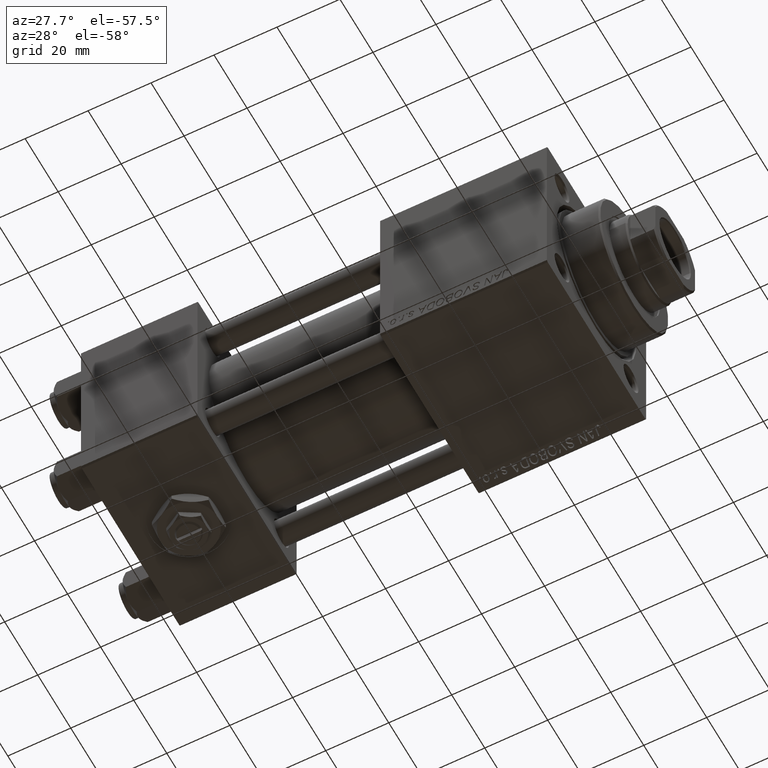
[diagram: clean part render]
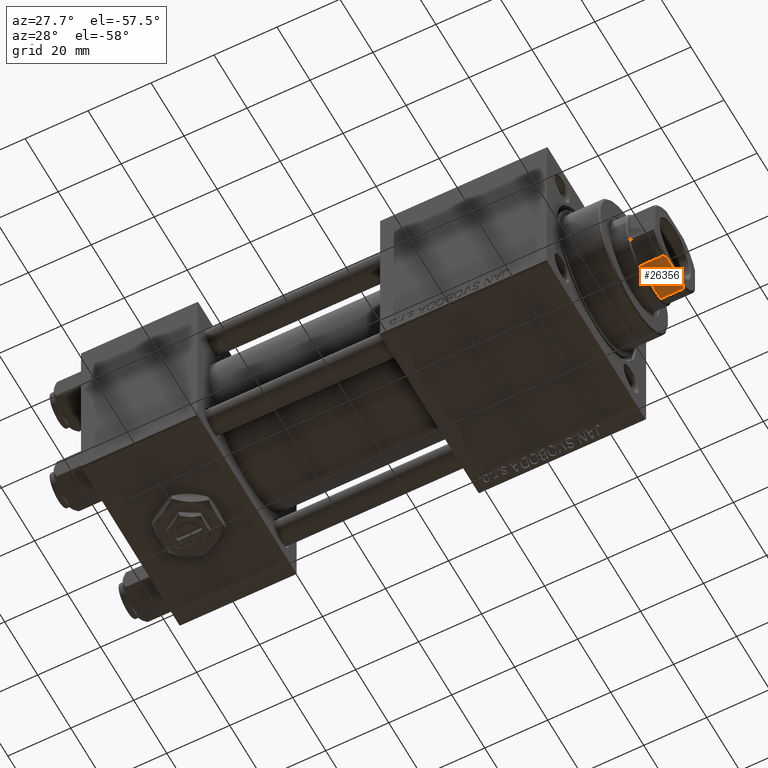
[diagram: same view with one face highlighted and labeled with its STEP entity id]
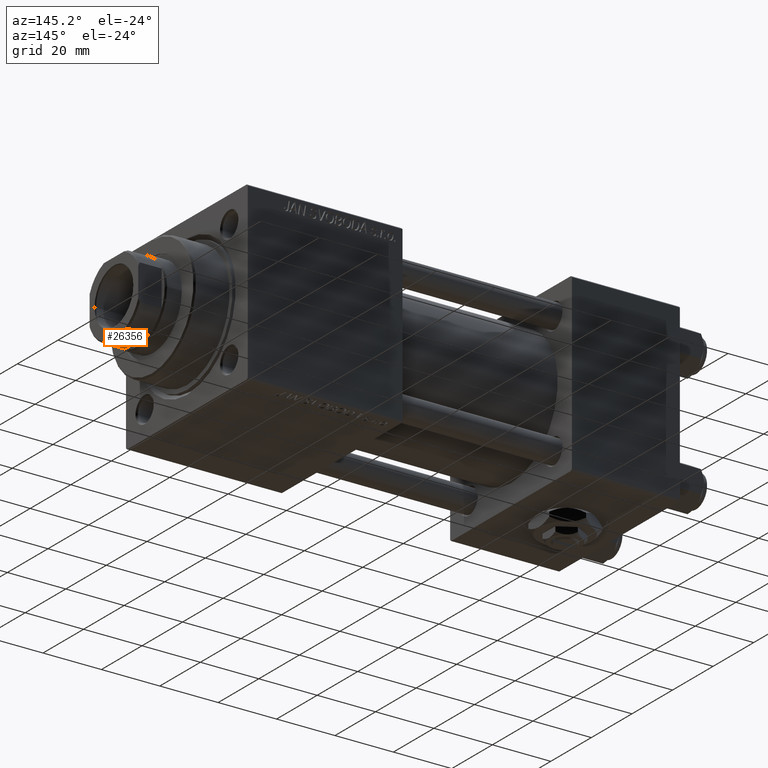
[diagram: same view with one face highlighted and labeled with its STEP entity id]
A machine part, auxiliary view. The second image highlights one B-rep face of the part: STEP entity #26356.
A second angle (auxiliary view) of the same face is appended — the face is thin or edge-on in the first view.
In plain terms, the highlighted planar face has unit normal (0, -0, 1).
Its self-contained STEP definition (entity closure, byte-faithful):
#403 = CARTESIAN_POINT ( 'NONE',  ( -6.184658438426496652, 11.99999999999999645, 135.5000000000000000 ) ) ;
#781 = AXIS2_PLACEMENT_3D ( 'NONE', #15835, #51815, #6654 ) ;
#2484 = CARTESIAN_POINT ( 'NONE',  ( 6.184658438426494875, 11.99999999999999645, 128.0000000000000853 ) ) ;
#2528 = B_SPLINE_CURVE_WITH_KNOTS ( 'NONE', 3,
 ( #48518, #40894, #16728, #12536 ),
 .UNSPECIFIED., .F., .F.,
 ( 4, 4 ),
 ( 8.673617379884035472E-19, 0.001285852097146082717 ),
 .UNSPECIFIED. ) ;
#2553 = EDGE_LOOP ( 'NONE', ( #7606, #25950, #50765, #49411, #41189, #28428 ) ) ;
#4506 = VERTEX_POINT ( 'NONE', #34434 ) ;
#4738 = VECTOR ( 'NONE', #11133, 1000.000000000000000 ) ;
#6082 = CARTESIAN_POINT ( 'NONE',  ( -12.00000000000000000, 11.99999999999999645, 128.0000000000000000 ) ) ;
#6601 = LINE ( 'NONE', #14475, #26512 ) ;
#6654 = DIRECTION ( 'NONE',  ( 0.000000000000000000, -0.000000000000000000, -1.000000000000000000 ) ) ;
#6664 = VERTEX_POINT ( 'NONE', #403 ) ;
#7606 = ORIENTED_EDGE ( 'NONE', *, *, #45502, .F. ) ;
#11133 = DIRECTION ( 'NONE',  ( -0.000000000000000000, -0.000000000000000000, 1.000000000000000000 ) ) ;
#11641 = PLANE ( 'NONE',  #781 ) ;
#12536 = CARTESIAN_POINT ( 'NONE',  ( 6.184658438426495763, 11.99999999999999822, 135.5000000000000284 ) ) ;
#12772 = EDGE_CURVE ( 'NONE', #42617, #31431, #15000, .T. ) ;
#12953 = CARTESIAN_POINT ( 'NONE',  ( -4.999999999999987566, 11.99999999999999645, 136.0000000000000000 ) ) ;
#13189 = CARTESIAN_POINT ( 'NONE',  ( -6.184658438426494875, 11.99999999999999645, 128.0000000000000853 ) ) ;
#14475 = CARTESIAN_POINT ( 'NONE',  ( 6.184658438426495763, 11.99999999999999822, -0.001000000000001000089 ) ) ;
#15000 = LINE ( 'NONE', #6082, #24707 ) ;
#15286 = EDGE_CURVE ( 'NONE', #42617, #4506, #6601, .T. ) ;
#15578 = CARTESIAN_POINT ( 'NONE',  ( -12.00000000000000000, 11.99999999999999645, 136.0000000000000000 ) ) ;
#15835 = CARTESIAN_POINT ( 'NONE',  ( -12.00000000000000000, 11.99999999999999645, 136.0000000000000000 ) ) ;
#15988 = EDGE_CURVE ( 'NONE', #31431, #6664, #39504, .T. ) ;
#16098 = VERTEX_POINT ( 'NONE', #35813 ) ;
#16728 = CARTESIAN_POINT ( 'NONE',  ( 5.794808544282261664, 11.99999999999999645, 135.6785991435214385 ) ) ;
#20294 = LINE ( 'NONE', #15578, #31673 ) ;
#22139 = EDGE_CURVE ( 'NONE', #16098, #4506, #2528, .T. ) ;
#22875 = DIRECTION ( 'NONE',  ( -0.000000000000000000, -0.000000000000000000, 1.000000000000000000 ) ) ;
#24707 = VECTOR ( 'NONE', #34173, 1000.000000000000000 ) ;
#25950 = ORIENTED_EDGE ( 'NONE', *, *, #22139, .T. ) ;
#26356 = ADVANCED_FACE ( 'NONE', ( #27651 ), #11641, .F. ) ;
#26512 = VECTOR ( 'NONE', #22875, 1000.000000000000000 ) ;
#27437 = EDGE_CURVE ( 'NONE', #6664, #35495, #41735, .T. ) ;
#27614 = CARTESIAN_POINT ( 'NONE',  ( -5.400255697127783527, 11.99999999999999645, 135.8460555011047006 ) ) ;
#27651 = FACE_OUTER_BOUND ( 'NONE', #2553, .T. ) ;
#27866 = CARTESIAN_POINT ( 'NONE',  ( -6.184658438426496652, 11.99999999999999645, 135.5000000000000000 ) ) ;
#28428 = ORIENTED_EDGE ( 'NONE', *, *, #27437, .T. ) ;
#31431 = VERTEX_POINT ( 'NONE', #13189 ) ;
#31578 = DIRECTION ( 'NONE',  ( -1.000000000000000000, -0.000000000000000000, -0.000000000000000000 ) ) ;
#31673 = VECTOR ( 'NONE', #31578, 1000.000000000000000 ) ;
#34173 = DIRECTION ( 'NONE',  ( -1.000000000000000000, -0.000000000000000000, -0.000000000000000000 ) ) ;
#34434 = CARTESIAN_POINT ( 'NONE',  ( 6.184658438426495763, 11.99999999999999822, 135.5000000000000284 ) ) ;
#35495 = VERTEX_POINT ( 'NONE', #12953 ) ;
#35813 = CARTESIAN_POINT ( 'NONE',  ( 5.000000000000042633, 11.99999999999999645, 136.0000000000000000 ) ) ;
#39504 = LINE ( 'NONE', #46864, #4738 ) ;
#40894 = CARTESIAN_POINT ( 'NONE',  ( 5.400255697127817278, 11.99999999999999645, 135.8460555011047006 ) ) ;
#41189 = ORIENTED_EDGE ( 'NONE', *, *, #15988, .T. ) ;
#41735 = B_SPLINE_CURVE_WITH_KNOTS ( 'NONE', 3,
 ( #27866, #47583, #27614, #43646 ),
 .UNSPECIFIED., .F., .F.,
 ( 4, 4 ),
 ( 0.000000000000000000, 0.001285852097146142998 ),
 .UNSPECIFIED. ) ;
#42617 = VERTEX_POINT ( 'NONE', #2484 ) ;
#43646 = CARTESIAN_POINT ( 'NONE',  ( -4.999999999999987566, 11.99999999999999645, 136.0000000000000000 ) ) ;
#45502 = EDGE_CURVE ( 'NONE', #16098, #35495, #20294, .T. ) ;
#46864 = CARTESIAN_POINT ( 'NONE',  ( -6.184658438426496652, 11.99999999999999645, -0.001000000000001000089 ) ) ;
#47583 = CARTESIAN_POINT ( 'NONE',  ( -5.794808544282238572, 11.99999999999999645, 135.6785991435214100 ) ) ;
#48518 = CARTESIAN_POINT ( 'NONE',  ( 5.000000000000042633, 11.99999999999999645, 136.0000000000000000 ) ) ;
#49411 = ORIENTED_EDGE ( 'NONE', *, *, #12772, .T. ) ;
#50765 = ORIENTED_EDGE ( 'NONE', *, *, #15286, .F. ) ;
#51815 = DIRECTION ( 'NONE',  ( 0.000000000000000000, -1.000000000000000000, 0.000000000000000000 ) ) ;